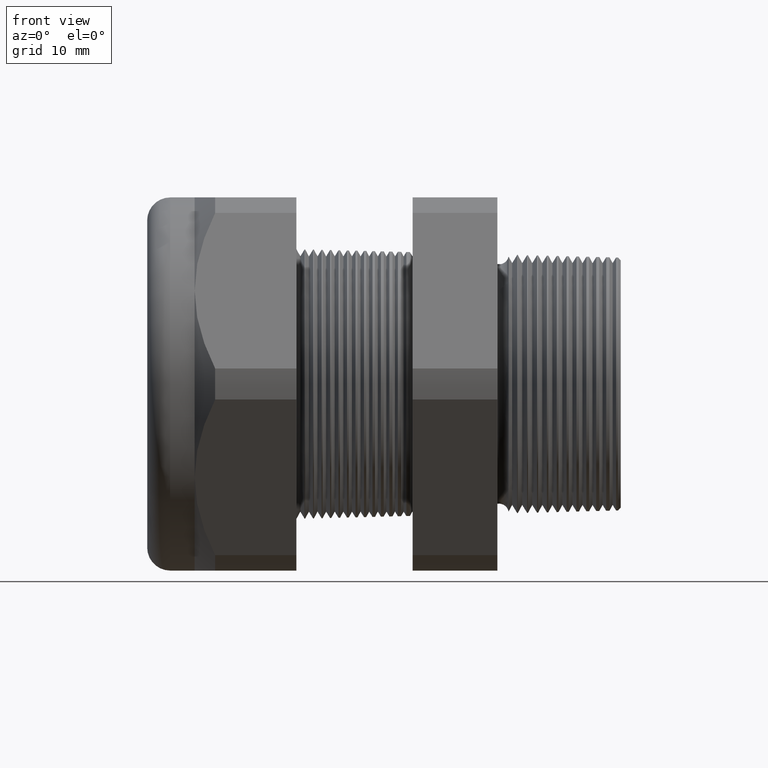
[diagram: clean part render]
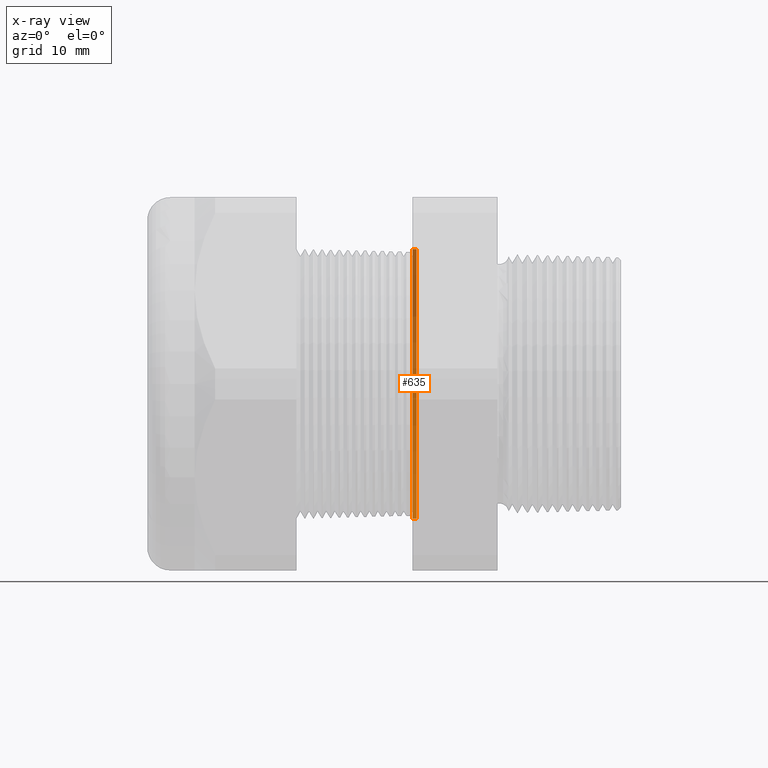
[diagram: x-ray — body ghosted, one internal face saturated and labeled with its STEP entity id]
A machine part, front view, then the same camera in x-ray: the body is ghosted and one INTERNAL B-rep face — a face not visible from any outside direction — is saturated and labeled: STEP entity #635.
In plain terms, the highlighted conical surface has half-angle 1.5 deg.
Its self-contained STEP definition (entity closure, byte-faithful):
#561 = ORIENTED_EDGE ( 'NONE', *, *, #1549, .F. ) ;
#562 = ORIENTED_EDGE ( 'NONE', *, *, #1464, .T. ) ;
#563 = ORIENTED_EDGE ( 'NONE', *, *, #1483, .T. ) ;
#564 = ORIENTED_EDGE ( 'NONE', *, *, #2635, .T. ) ;
#583 = EDGE_LOOP ( 'NONE', ( #561, #562, #563, #564 ) ) ;
#635 = ADVANCED_FACE ( 'NONE', ( #2962 ), #2961, .F. ) ;
#1464 = EDGE_CURVE ( 'NONE', #1546, #1544, #4453, .T. ) ;
#1479 = VERTEX_POINT ( 'NONE', #4478 ) ;
#1483 = EDGE_CURVE ( 'NONE', #1544, #1479, #4477, .T. ) ;
#1544 = VERTEX_POINT ( 'NONE', #4599 ) ;
#1546 = VERTEX_POINT ( 'NONE', #4598 ) ;
#1549 = EDGE_CURVE ( 'NONE', #1546, #1550, #4597, .T. ) ;
#1550 = VERTEX_POINT ( 'NONE', #4593 ) ;
#2635 = EDGE_CURVE ( 'NONE', #1479, #1550, #4846, .T. ) ;
#2957 = DIRECTION ( 'NONE',  ( 0.0000000000000000000, 0.0000000000000000000, 1.000000000000000000 ) ) ;
#2958 = DIRECTION ( 'NONE',  ( -1.000000000000000000, 0.0000000000000000000, 0.0000000000000000000 ) ) ;
#2959 = AXIS2_PLACEMENT_3D ( 'NONE', #2966, #2958, #2957 ) ;
#2961 = CONICAL_SURFACE ( 'NONE', #2959, 0.4692443365923945100, 0.02617993877990797800 ) ;
#2962 = FACE_OUTER_BOUND ( 'NONE', #583, .T. ) ;
#2966 = CARTESIAN_POINT ( 'NONE',  ( -0.5914573393463203900, 0.0000000000000000000, 0.0000000000000000000 ) ) ;
#4450 = DIRECTION ( 'NONE',  ( 0.0000000000000000000, 0.0000000000000000000, -1.000000000000000000 ) ) ;
#4451 = DIRECTION ( 'NONE',  ( 1.000000000000000000, 0.0000000000000000000, 0.0000000000000000000 ) ) ;
#4452 = AXIS2_PLACEMENT_3D ( 'NONE', #4459, #4451, #4450 ) ;
#4453 = CIRCLE ( 'NONE', #4452, 0.4692443365923945100 ) ;
#4459 = CARTESIAN_POINT ( 'NONE',  ( -0.5914573393463203900, 0.0000000000000000000, 0.0000000000000000000 ) ) ;
#4474 = DIRECTION ( 'NONE',  ( -0.9996573249755573700, 0.0000000000000000000, 0.02617694830786618600 ) ) ;
#4475 = VECTOR ( 'NONE', #4474, 39.37007874015748100 ) ;
#4476 = CARTESIAN_POINT ( 'NONE',  ( -0.5914573393463203900, 0.0000000000000000000, 0.4692443365923945100 ) ) ;
#4477 = LINE ( 'NONE', #4476, #4475 ) ;
#4478 = CARTESIAN_POINT ( 'NONE',  ( -0.6052755905511809600, 0.0000000000000000000, 0.4696061802346682100 ) ) ;
#4593 = CARTESIAN_POINT ( 'NONE',  ( -0.6052755905511809600, 5.751017054842014700E-017, -0.4696061802346682100 ) ) ;
#4594 = DIRECTION ( 'NONE',  ( -0.9996573249755573700, 3.205751595667405400E-018, -0.02617694830786618600 ) ) ;
#4595 = VECTOR ( 'NONE', #4594, 39.37007874015748100 ) ;
#4596 = CARTESIAN_POINT ( 'NONE',  ( -0.5914573393463203900, 5.746585748258992000E-017, -0.4692443365923945100 ) ) ;
#4597 = LINE ( 'NONE', #4596, #4595 ) ;
#4598 = CARTESIAN_POINT ( 'NONE',  ( -0.5914573393463203900, 0.0000000000000000000, -0.4692443365923945100 ) ) ;
#4599 = CARTESIAN_POINT ( 'NONE',  ( -0.5914573393463203900, 5.746585748258992000E-017, 0.4692443365923945100 ) ) ;
#4846 = CIRCLE ( 'NONE', #4906, 0.4696061802346682700 ) ;
#4903 = DIRECTION ( 'NONE',  ( 0.0000000000000000000, 0.0000000000000000000, 1.000000000000000000 ) ) ;
#4904 = DIRECTION ( 'NONE',  ( -1.000000000000000000, 0.0000000000000000000, 0.0000000000000000000 ) ) ;
#4905 = CARTESIAN_POINT ( 'NONE',  ( -0.6052755905511809600, 0.0000000000000000000, 0.0000000000000000000 ) ) ;
#4906 = AXIS2_PLACEMENT_3D ( 'NONE', #4905, #4904, #4903 ) ;